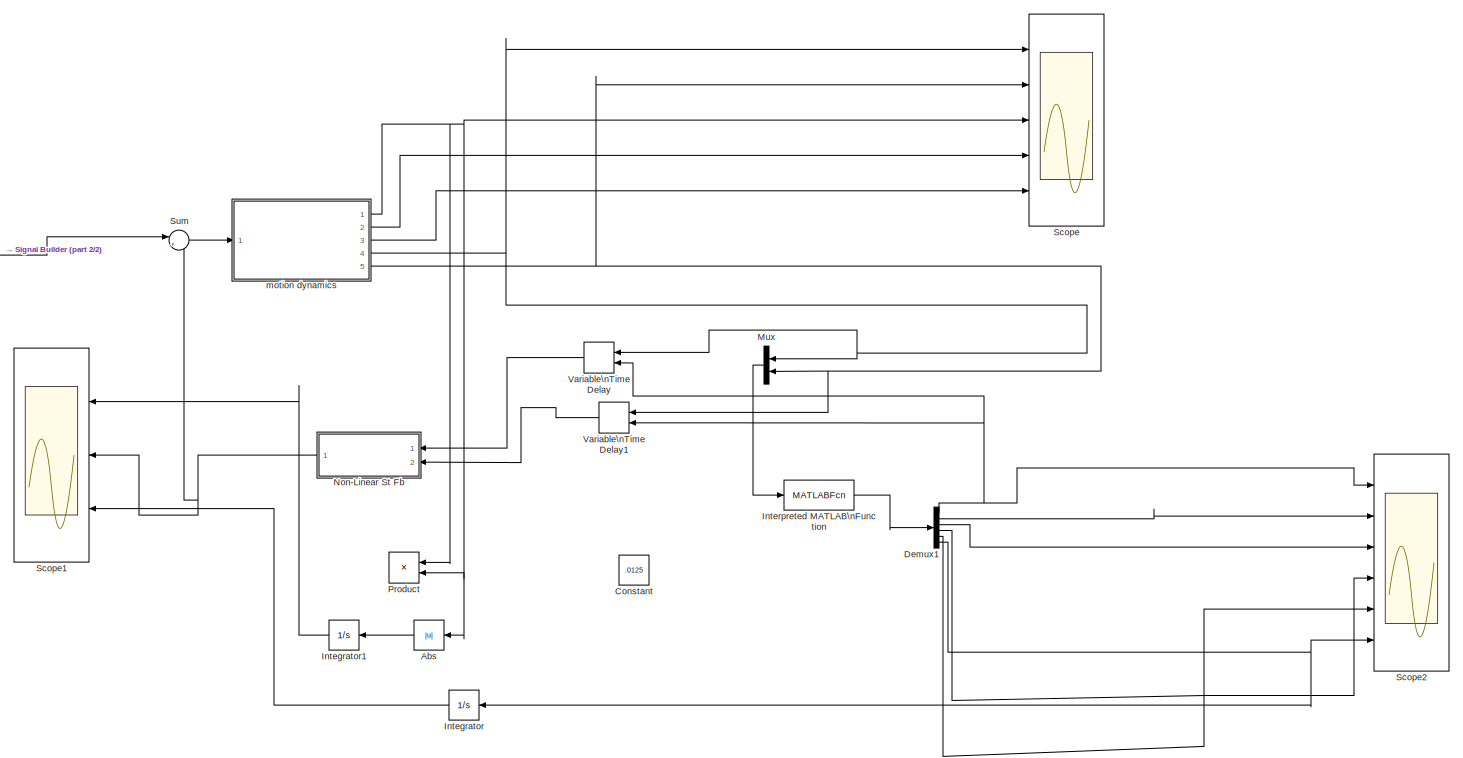
[diagram: root canvas - part 1/2, most of the canvas]
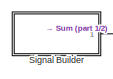
[diagram: root canvas - part 2/2, middle left region]
MODEL sim_ieee_mdl
KIND model
BLOCK [Abs] Abs
  SID = 88
  SaturateOnIntegerOverflow = off
BLOCK [Constant] Constant
  SID = 82
  Value = .0125
BLOCK [Demux] Demux1
  DisplayOption = bar
  Outputs = 6
  Ports = [1, 6]
  SID = 79
BLOCK [Integrator] Integrator
  Ports = [1, 1]
  SID = 85
BLOCK [Integrator] Integrator1
  Ports = [1, 1]
  SID = 86
BLOCK [MATLABFcn] Interpreted MATLAB\nFunction
  MATLABFcn = mfun(u(1),u(2))
  Output1D = off
  OutputSignalType = real
  Ports = [1, 1]
  SID = 75
BLOCK [Mux] Mux
  DisplayOption = bar
  Inputs = 2
  Ports = [2, 1]
  SID = 70
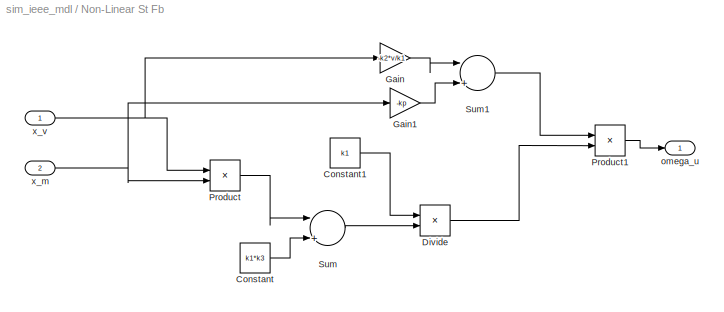
BLOCK [SubSystem] Non-Linear St Fb
  Ports = [2, 1]
  RequestExecContextInheritance = off
  SID = 13
BLOCK [Constant] Non-Linear St Fb/Constant
  SID = 16
  Value = k1*k3
BLOCK [Constant] Non-Linear St Fb/Constant1
  SID = 17
  Value = k1
BLOCK [Product] Non-Linear St Fb/Divide
  InputSameDT = off
  Inputs = */
  OutDataTypeStr = Inherit: Inherit via internal rule
  Ports = [2, 1]
  RndMeth = Floor
  SID = 18
  SaturateOnIntegerOverflow = off
BLOCK [Gain] Non-Linear St Fb/Gain
  Gain = -k2*v/k1
  OutDataTypeStr = Inherit: Inherit via internal rule
  ParamDataTypeStr = Inherit: Inherit via internal rule
  SID = 19
  SaturateOnIntegerOverflow = off
BLOCK [Gain] Non-Linear St Fb/Gain1
  Gain = -kp
  OutDataTypeStr = Inherit: Inherit via internal rule
  ParamDataTypeStr = Inherit: Inherit via internal rule
  SID = 20
  SaturateOnIntegerOverflow = off
BLOCK [Product] Non-Linear St Fb/Product
  InputSameDT = off
  OutDataTypeStr = Inherit: Inherit via internal rule
  Ports = [2, 1]
  RndMeth = Floor
  SID = 21
  SaturateOnIntegerOverflow = off
BLOCK [Product] Non-Linear St Fb/Product1
  InputSameDT = off
  OutDataTypeStr = Inherit: Inherit via internal rule
  Ports = [2, 1]
  RndMeth = Floor
  SID = 22
  SaturateOnIntegerOverflow = off
BLOCK [Sum] Non-Linear St Fb/Sum
  InputSameDT = off
  Inputs = |++
  OutDataTypeStr = Inherit: Inherit via internal rule
  Ports = [2, 1]
  SID = 23
  SaturateOnIntegerOverflow = off
BLOCK [Sum] Non-Linear St Fb/Sum1
  InputSameDT = off
  Inputs = |++
  OutDataTypeStr = Inherit: Inherit via internal rule
  Ports = [2, 1]
  SID = 24
  SaturateOnIntegerOverflow = off
BLOCK [Outport] Non-Linear St Fb/omega_u
  IconDisplay = Port number
  SID = 25
BLOCK [Inport] Non-Linear St Fb/x_m
  IconDisplay = Port number
  Port = 2
  SID = 15
BLOCK [Inport] Non-Linear St Fb/x_v
  IconDisplay = Port number
  SID = 14
BLOCK [Product] Product
  InputSameDT = off
  OutDataTypeStr = Inherit: Inherit via internal rule
  Ports = [2, 1]
  RndMeth = Floor
  SID = 87
  SaturateOnIntegerOverflow = off
BLOCK [Scope] Scope
  DataFormat = StructureWithTime
  Floating = off
  LimitDataPoints = off
  NumInputPorts = 5
  Ports = [5]
  SID = 28
  SaveName = SysOut
  SaveToWorkspace = on
  ShowLegends = off
  TimeRange = 20
  YMax = 1e-07~3e-05~0.1~100~0.009999999999999998
  YMin = -2e-07~-9.999999999999999e-06~-0.05~0~-0.02
  ZoomMode = yonly
BLOCK [Scope] Scope1
  DataFormat = StructureWithTime
  Floating = off
  LimitDataPoints = off
  NumInputPorts = 3
  Ports = [3]
  SID = 29
  SampleTime = 0.001
  SaveToWorkspace = on
  ShowLegends = off
  YMax = 5~5~5
  YMin = -5~-5~-5
BLOCK [Scope] Scope2
  DataFormat = StructureWithTime
  Floating = off
  LimitDataPoints = off
  NumInputPorts = 6
  Ports = [6]
  SID = 77
  SampleInput = on
  SaveName = Scheduler
  SaveToWorkspace = on
  ShowLegends = off
  TimeRange = 20
  YMax = 2~7~7~1~1~8
  YMin = -1~5~5~-1~-1~5
  ZoomMode = yonly
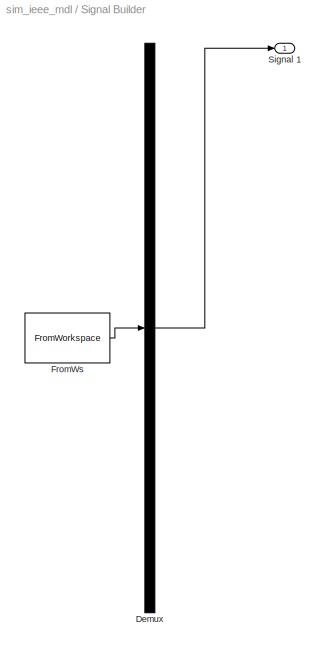
BLOCK [SubSystem] Signal Builder
  ClipboardFcn = sigbuilder_block('clipboard');
  CloseFcn = sigbuilder_block('close');
  ContinueFcn = sigbuilder_block('continue');
  CopyFcn = sigbuilder_block('copy');
  DeleteFcn = sigbuilder_block('delete');
  LoadFcn = sigbuilder_block('load');
  MaskHideContents = on
  ModelCloseFcn = sigbuilder_block('modelClose');
  NameChangeFcn = sigbuilder_block('namechange');
  OpenFcn = sigbuilder_block('open',[437.6 199.2 550.4 400 ]);
  PauseFcn = sigbuilder_block('pause');
  Ports = [0, 1]
  PreSaveFcn = sigbuilder_block('preSave');
  RequestExecContextInheritance = off
  SID = 90
  StartFcn = sigbuilder_block('start');
  StopFcn = sigbuilder_block('stop');
  Tag = STV Subsys
BLOCK [Demux] Signal Builder/Demux
  Outputs = 1
  Ports = [1, 1]
  SID = 90:1
  Tag = STV Demux
BLOCK [FromWorkspace] Signal Builder/FromWs
  SID = 90:2
  SampleTime = 0
  SigBuilderData = DataTag0
  Tag = STV FromWs
  VariableName = tuvar
  VnvData = DataTag1
  ZeroCross = on
BLOCK [Outport] Signal Builder/Signal 1
  IconDisplay = Port number
  SID = 90:3
  Tag = STV Outport
BLOCK [Sum] Sum
  IconShape = round
  InputSameDT = off
  Inputs = |++
  OutDataTypeStr = Inherit: Inherit via internal rule
  Ports = [2, 1]
  SID = 68
  SaturateOnIntegerOverflow = off
BLOCK [VariableTransportDelay] Variable\nTime Delay
  FixedBuffer = on
  MaximumDelay = 10
  PadeOrder = 2
  Ports = [2, 1]
  SID = 69
  TransDelayFeedthrough = on
  ZeroDelay = on
BLOCK [VariableTransportDelay] Variable\nTime Delay1
  FixedBuffer = on
  MaximumDelay = 10
  PadeOrder = 2
  Ports = [2, 1]
  SID = 92
  TransDelayFeedthrough = on
  ZeroDelay = on
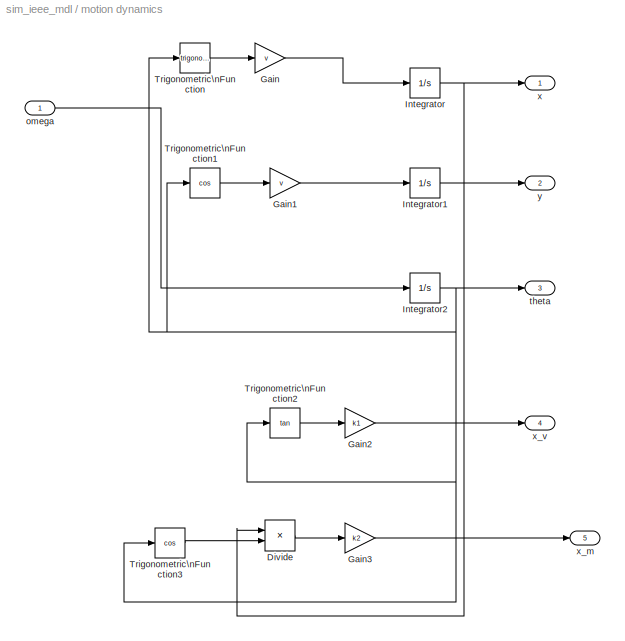
BLOCK [SubSystem] motion dynamics
  Ports = [1, 5]
  RequestExecContextInheritance = off
  SID = 32
BLOCK [Product] motion dynamics/Divide
  InputSameDT = off
  Inputs = */
  OutDataTypeStr = Inherit: Inherit via internal rule
  Ports = [2, 1]
  RndMeth = Floor
  SID = 34
  SaturateOnIntegerOverflow = off
BLOCK [Gain] motion dynamics/Gain
  Gain = v
  OutDataTypeStr = Inherit: Inherit via internal rule
  ParamDataTypeStr = Inherit: Inherit via internal rule
  SID = 35
  SaturateOnIntegerOverflow = off
BLOCK [Gain] motion dynamics/Gain1
  Gain = v
  OutDataTypeStr = Inherit: Inherit via internal rule
  ParamDataTypeStr = Inherit: Inherit via internal rule
  SID = 36
  SaturateOnIntegerOverflow = off
BLOCK [Gain] motion dynamics/Gain2
  Gain = k1
  OutDataTypeStr = Inherit: Inherit via internal rule
  ParamDataTypeStr = Inherit: Inherit via internal rule
  SID = 37
  SaturateOnIntegerOverflow = off
BLOCK [Gain] motion dynamics/Gain3
  Gain = k2
  OutDataTypeStr = Inherit: Inherit via internal rule
  ParamDataTypeStr = Inherit: Inherit via internal rule
  SID = 38
  SaturateOnIntegerOverflow = off
BLOCK [Integrator] motion dynamics/Integrator
  InitialCondition = x0
  Ports = [1, 1]
  SID = 39
BLOCK [Integrator] motion dynamics/Integrator1
  InitialCondition = y0
  Ports = [1, 1]
  SID = 40
BLOCK [Integrator] motion dynamics/Integrator2
  InitialCondition = theta0
  Ports = [1, 1]
  SID = 41
BLOCK [Trigonometry] motion dynamics/Trigonometric\nFunction
  Ports = [1, 1]
  SID = 42
BLOCK [Trigonometry] motion dynamics/Trigonometric\nFunction1
  Operator = cos
  Ports = [1, 1]
  SID = 43
BLOCK [Trigonometry] motion dynamics/Trigonometric\nFunction2
  Operator = tan
  Ports = [1, 1]
  SID = 44
BLOCK [Trigonometry] motion dynamics/Trigonometric\nFunction3
  Operator = cos
  Ports = [1, 1]
  SID = 45
BLOCK [Inport] motion dynamics/omega
  IconDisplay = Port number
  SID = 33
BLOCK [Outport] motion dynamics/theta
  IconDisplay = Port number
  Port = 3
  SID = 48
BLOCK [Outport] motion dynamics/x
  IconDisplay = Port number
  SID = 46
BLOCK [Outport] motion dynamics/x_m
  IconDisplay = Port number
  Port = 5
  SID = 50
BLOCK [Outport] motion dynamics/x_v
  IconDisplay = Port number
  Port = 4
  SID = 49
BLOCK [Outport] motion dynamics/y
  IconDisplay = Port number
  Port = 2
  SID = 47
LINE Abs:1 -> Integrator1:1
NET Demux1:1 -> Scope2:1, Variable\nTime Delay1:2, Variable\nTime Delay:2
LINE Demux1:2 -> Scope2:2
LINE Demux1:3 -> Scope2:3
LINE Demux1:4 -> Scope2:4
LINE Demux1:5 -> Scope2:5
NET Demux1:6 -> Integrator:1, Scope2:6
LINE Integrator1:1 -> Scope1:1
LINE Integrator:1 -> Scope1:3
LINE Interpreted MATLAB\nFunction:1 -> Demux1:1
LINE Mux:1 -> Interpreted MATLAB\nFunction:1
LINE Non-Linear St Fb/Constant1:1 -> Non-Linear St Fb/Divide:1
LINE Non-Linear St Fb/Constant:1 -> Non-Linear St Fb/Sum:2
LINE Non-Linear St Fb/Divide:1 -> Non-Linear St Fb/Product1:2
LINE Non-Linear St Fb/Gain1:1 -> Non-Linear St Fb/Sum1:2
LINE Non-Linear St Fb/Gain:1 -> Non-Linear St Fb/Sum1:1
LINE Non-Linear St Fb/Product1:1 -> Non-Linear St Fb/omega_u:1
LINE Non-Linear St Fb/Product:1 -> Non-Linear St Fb/Sum:1
LINE Non-Linear St Fb/Sum1:1 -> Non-Linear St Fb/Product1:1
LINE Non-Linear St Fb/Sum:1 -> Non-Linear St Fb/Divide:2
NET Non-Linear St Fb/x_m:1 -> Non-Linear St Fb/Gain1:1, Non-Linear St Fb/Product:2
NET Non-Linear St Fb/x_v:1 -> Non-Linear St Fb/Gain:1, Non-Linear St Fb/Product:1
NET Non-Linear St Fb:1 -> Scope1:2, Sum:2
LINE Signal Builder/Demux:1 -> Signal Builder/Signal 1:1
LINE Signal Builder/FromWs:1 -> Signal Builder/Demux:1
LINE Signal Builder:1 -> Sum:1
LINE Sum:1 -> motion dynamics:1
LINE Variable\nTime Delay1:1 -> Non-Linear St Fb:2
LINE Variable\nTime Delay:1 -> Non-Linear St Fb:1
LINE motion dynamics/Divide:1 -> motion dynamics/Gain3:1
LINE motion dynamics/Gain1:1 -> motion dynamics/Integrator1:1
LINE motion dynamics/Gain2:1 -> motion dynamics/x_v:1
LINE motion dynamics/Gain3:1 -> motion dynamics/x_m:1
LINE motion dynamics/Gain:1 -> motion dynamics/Integrator:1
LINE motion dynamics/Integrator1:1 -> motion dynamics/y:1
NET motion dynamics/Integrator2:1 -> motion dynamics/Trigonometric\nFunction1:1, motion dynamics/Trigonometric\nFunction2:1, motion dynamics/Trigonometric\nFunction3:1, motion dynamics/Trigonometric\nFunction:1, motion dynamics/theta:1
NET motion dynamics/Integrator:1 -> motion dynamics/Divide:1, motion dynamics/x:1
LINE motion dynamics/Trigonometric\nFunction1:1 -> motion dynamics/Gain1:1
LINE motion dynamics/Trigonometric\nFunction2:1 -> motion dynamics/Gain2:1
LINE motion dynamics/Trigonometric\nFunction3:1 -> motion dynamics/Divide:2
LINE motion dynamics/Trigonometric\nFunction:1 -> motion dynamics/Gain:1
LINE motion dynamics/omega:1 -> motion dynamics/Integrator2:1
NET motion dynamics:1 -> Abs:1, Product:1, Product:2, Scope:3
LINE motion dynamics:2 -> Scope:4
LINE motion dynamics:3 -> Scope:5
NET motion dynamics:4 -> Mux:1, Scope:1, Variable\nTime Delay:1
NET motion dynamics:5 -> Mux:2, Scope:2, Variable\nTime Delay1:1
note: NET lines group one-source signal fan-out (src -> all destinations, sorted); 1:1 wires keep LINE
